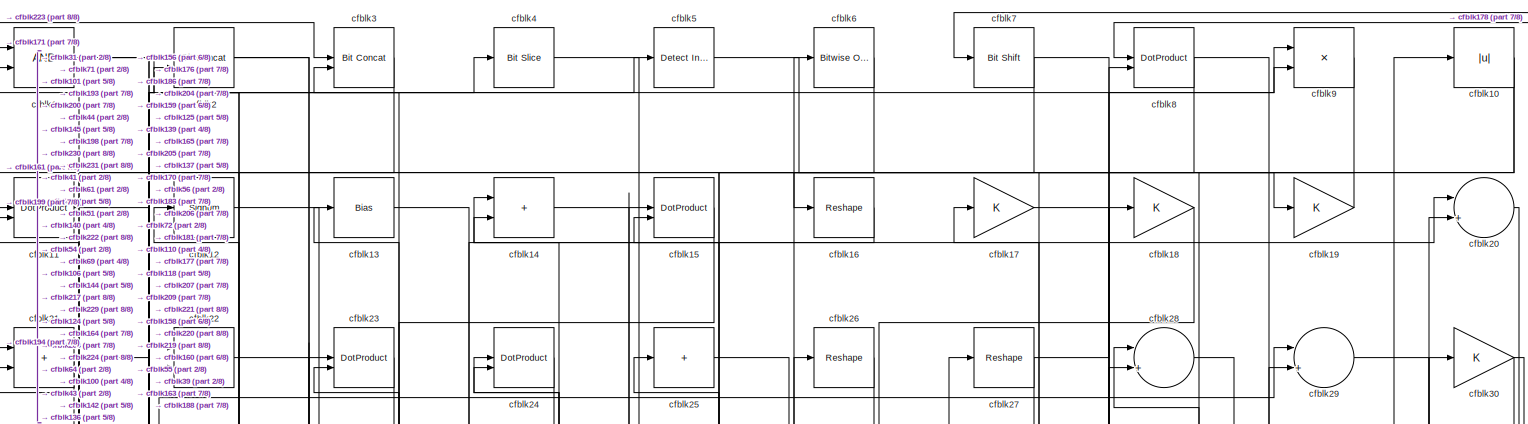
[diagram: root canvas - part 1/8, full width, top band]
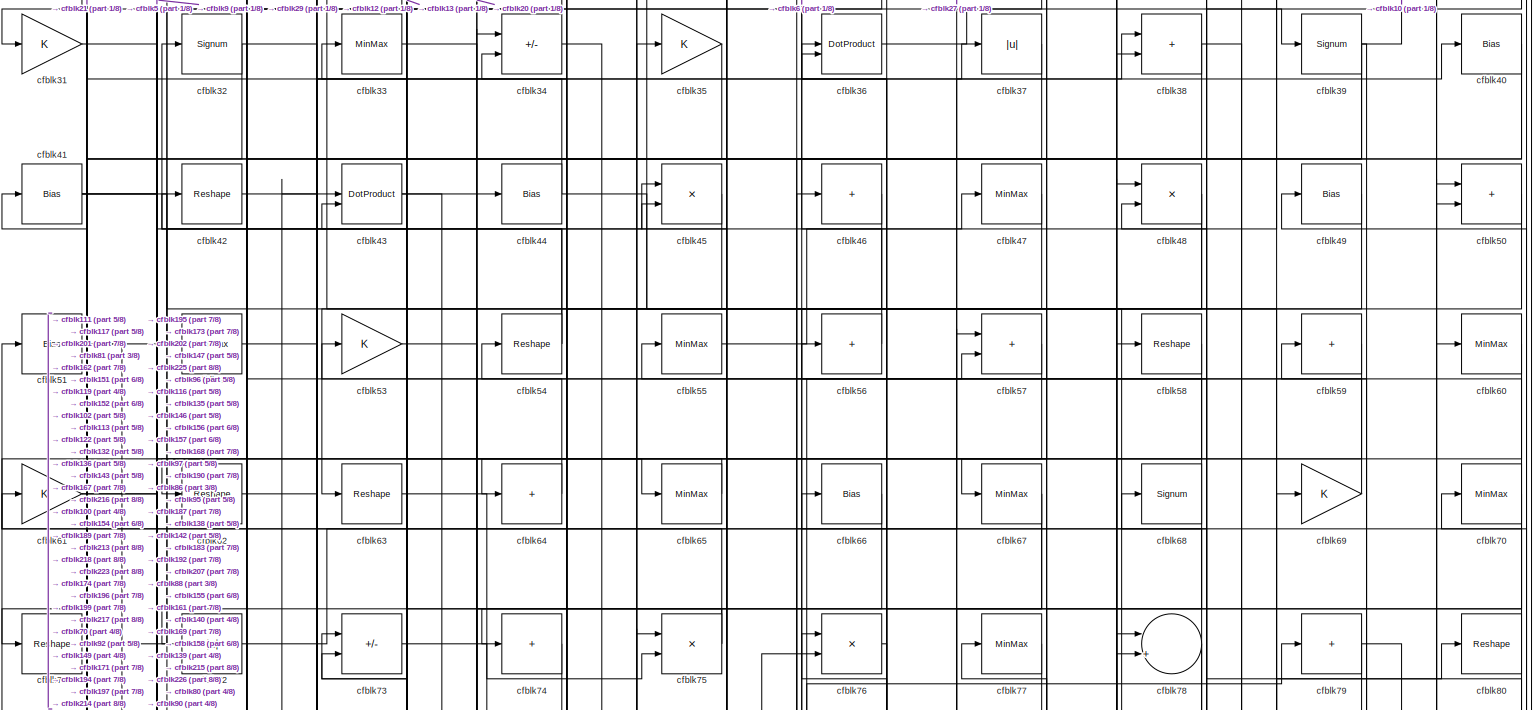
[diagram: root canvas - part 2/8, full width, top band]
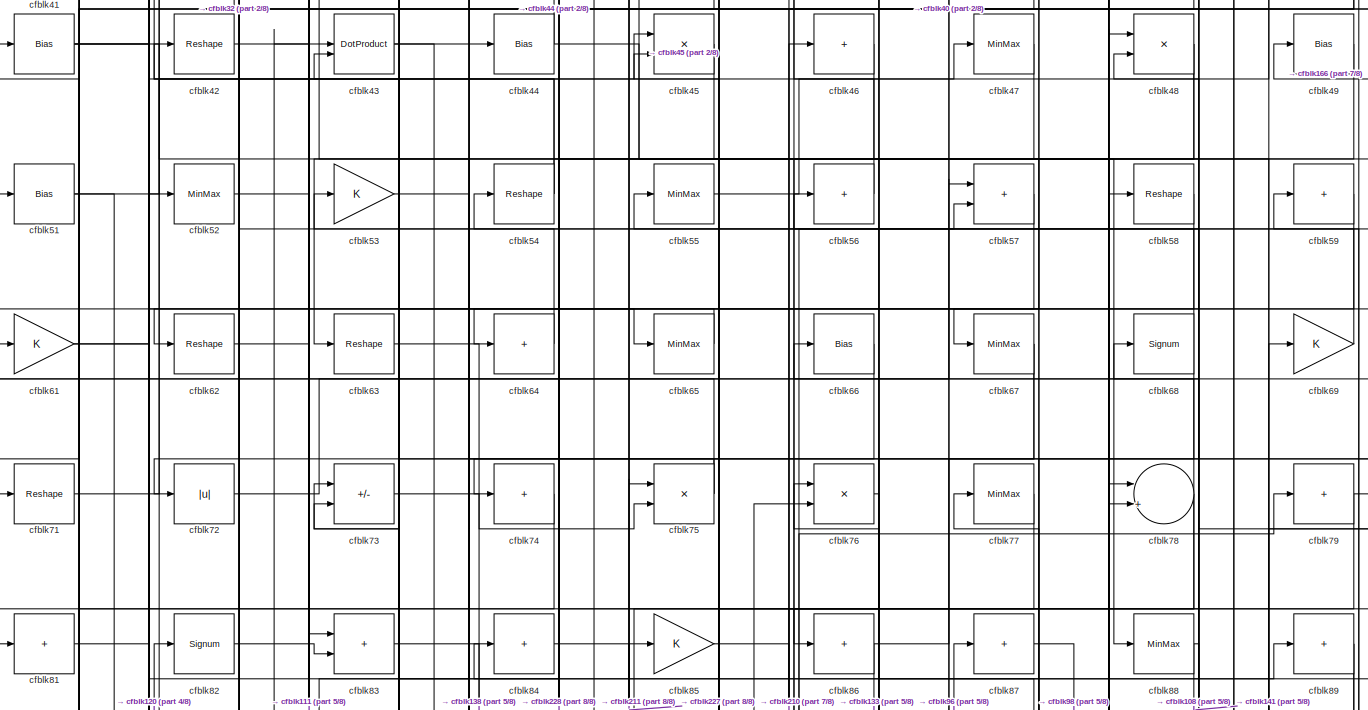
[diagram: root canvas - part 3/8, full width, top band]
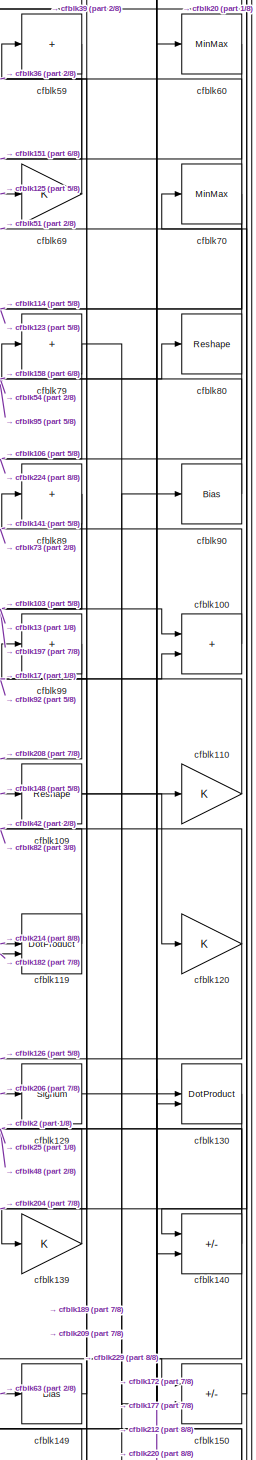
[diagram: root canvas - part 4/8, middle right region]
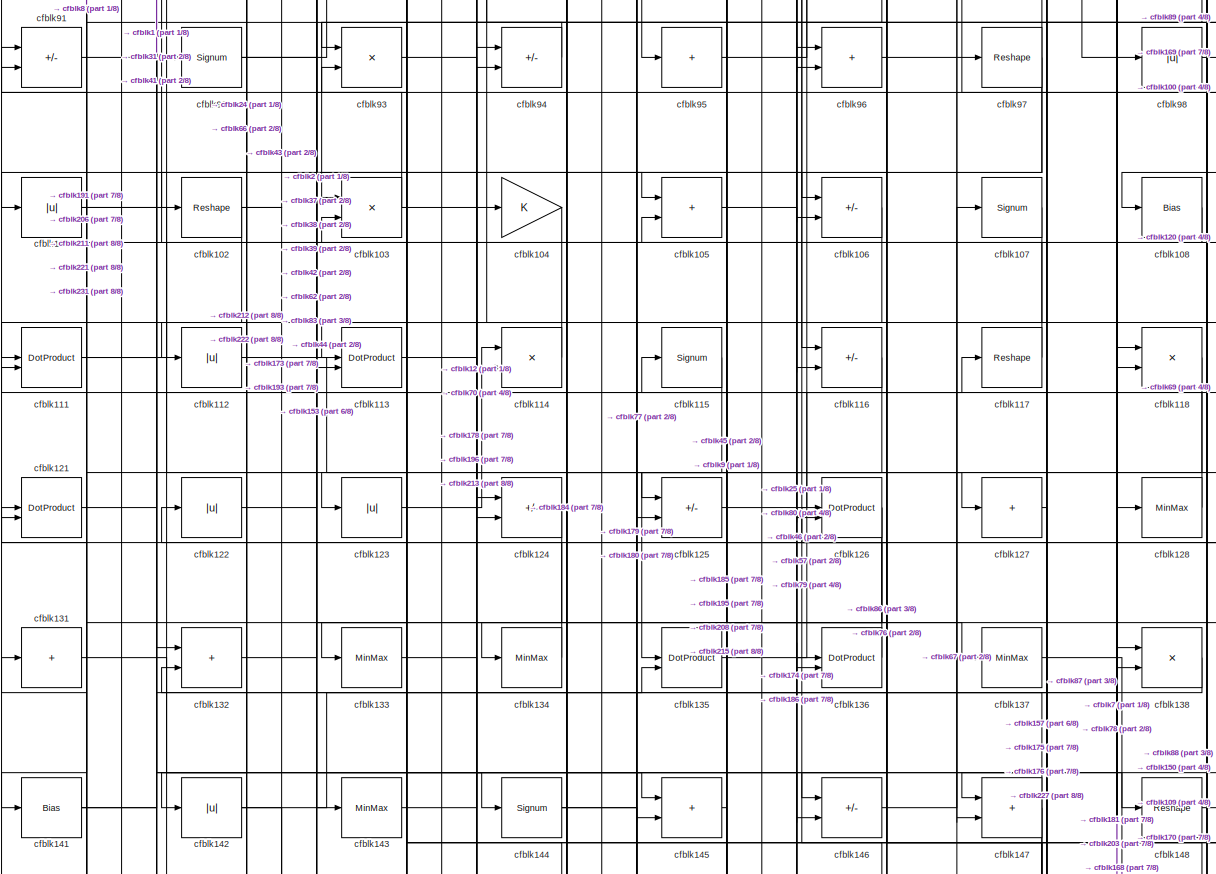
[diagram: root canvas - part 5/8, full width, middle band]
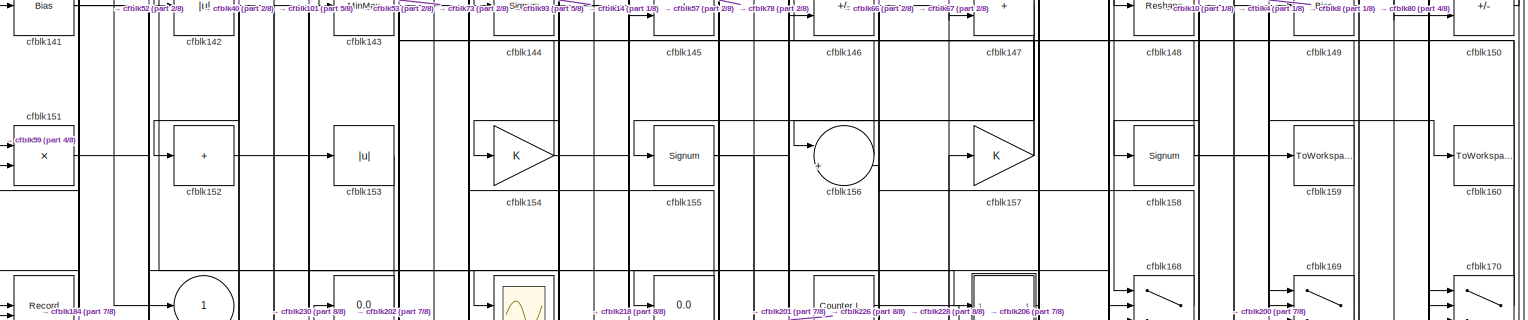
[diagram: root canvas - part 6/8, full width, middle band]
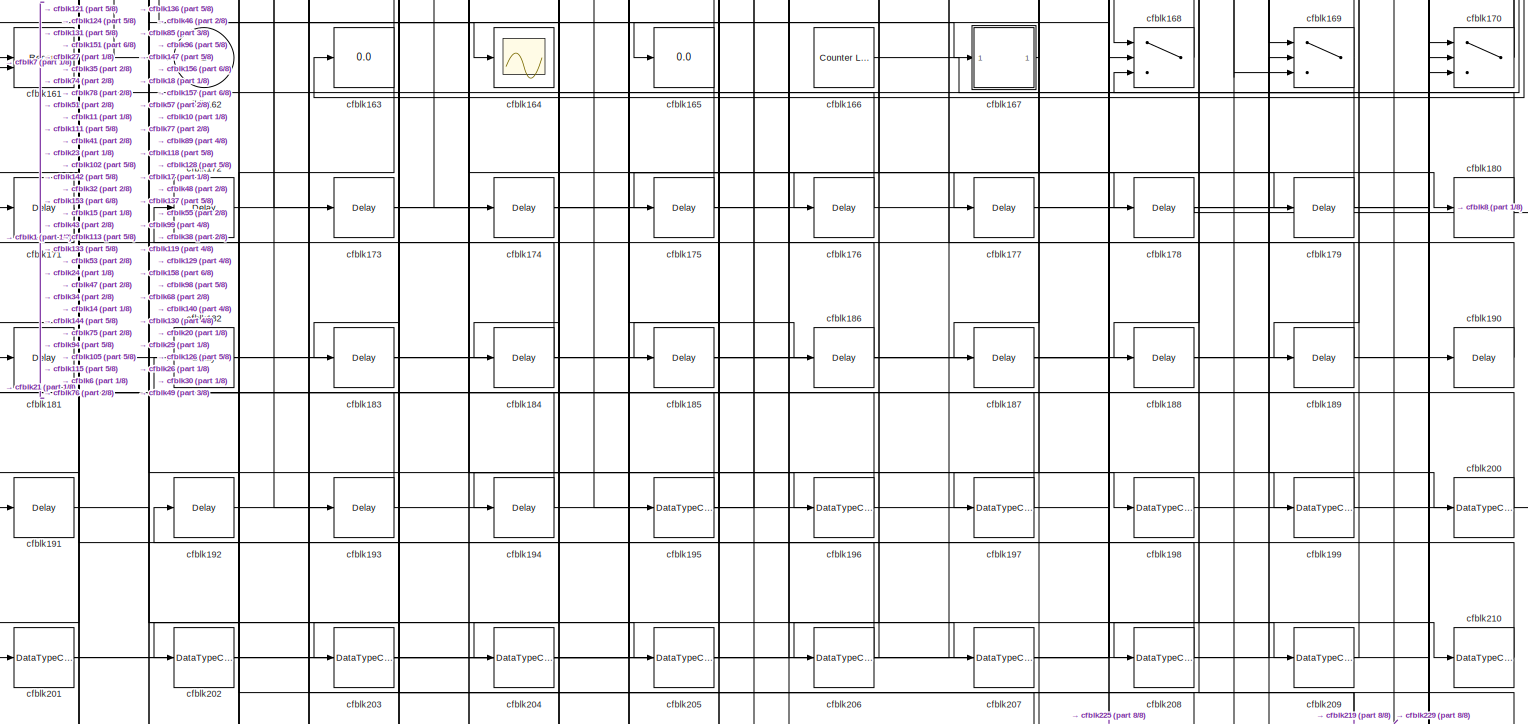
[diagram: root canvas - part 7/8, full width, bottom band]
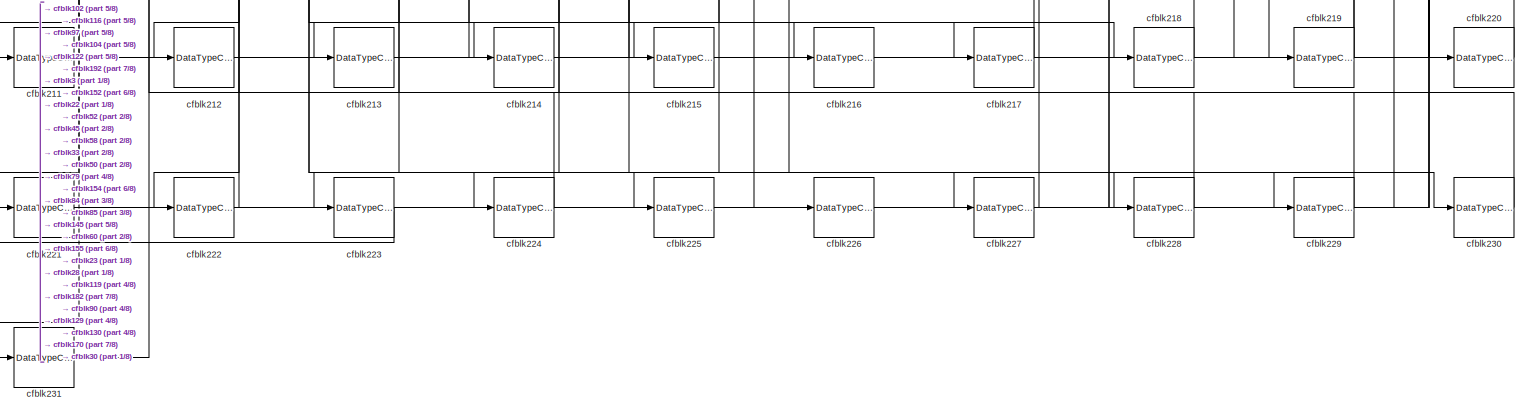
[diagram: root canvas - part 8/8, full width, bottom band]
MODEL slx_ee4e695bf727
KIND model
CONFIG AbsTol = auto
CONFIG EnableMultiTasking = off
CONFIG FixedStep = auto
CONFIG MaxStep = auto
CONFIG MinStep = auto
CONFIG RelTol = 1e-3
CONFIG SampleTimeConstraint = Unconstrained
CONFIG SolverName = VariableStepAuto
CONFIG StartTime = 0.0
CONFIG StopTime = 10.0
BLOCK [Logic] cfblk1
  AllPortsSameDT = off
  OutDataTypeStr = boolean
BLOCK [Abs] cfblk10
  SaturateOnIntegerOverflow = off
BLOCK [Sum] cfblk100
  IconShape = rectangular
BLOCK [Abs] cfblk101
  SaturateOnIntegerOverflow = off
BLOCK [Reshape] cfblk102
BLOCK [Product] cfblk103
  Inputs = */
  RndMeth = Zero
  SaturateOnIntegerOverflow = on
BLOCK [Gain] cfblk104
BLOCK [Sum] cfblk105
  IconShape = rectangular
BLOCK [Sum] cfblk106
  IconShape = rectangular
  Inputs = +-
BLOCK [Signum] cfblk107
BLOCK [Bias] cfblk108
  Bias = 0.0
  SaturateOnIntegerOverflow = off
BLOCK [Reshape] cfblk109
BLOCK [DotProduct] cfblk11
  OutDataTypeStr = Inherit: Inherit via internal rule
BLOCK [Gain] cfblk110
BLOCK [DotProduct] cfblk111
  OutDataTypeStr = Inherit: Inherit via internal rule
BLOCK [Abs] cfblk112
  SaturateOnIntegerOverflow = off
BLOCK [DotProduct] cfblk113
  OutDataTypeStr = Inherit: Inherit via internal rule
BLOCK [Product] cfblk114
  Inputs = */
  RndMeth = Zero
  SaturateOnIntegerOverflow = on
BLOCK [Signum] cfblk115
BLOCK [Sum] cfblk116
  IconShape = rectangular
  Inputs = +-
BLOCK [Reshape] cfblk117
BLOCK [Product] cfblk118
  Inputs = */
  RndMeth = Zero
  SaturateOnIntegerOverflow = on
BLOCK [DotProduct] cfblk119
  OutDataTypeStr = Inherit: Inherit via internal rule
BLOCK [Signum] cfblk12
BLOCK [Gain] cfblk120
BLOCK [DotProduct] cfblk121
  OutDataTypeStr = Inherit: Inherit via internal rule
BLOCK [Abs] cfblk122
  SaturateOnIntegerOverflow = off
BLOCK [Abs] cfblk123
  SaturateOnIntegerOverflow = off
BLOCK [Sum] cfblk124
  IconShape = rectangular
  Inputs = +-
BLOCK [Sum] cfblk125
  IconShape = rectangular
  Inputs = +-
BLOCK [DotProduct] cfblk126
  OutDataTypeStr = Inherit: Inherit via internal rule
BLOCK [Sum] cfblk127
  IconShape = rectangular
  Inputs = +
BLOCK [MinMax] cfblk128
BLOCK [Signum] cfblk129
BLOCK [Bias] cfblk13
  Bias = 0.0
  SaturateOnIntegerOverflow = off
BLOCK [DotProduct] cfblk130
  OutDataTypeStr = Inherit: Inherit via internal rule
BLOCK [Sum] cfblk131
  IconShape = rectangular
  Inputs = +
BLOCK [Sum] cfblk132
  IconShape = rectangular
BLOCK [MinMax] cfblk133
BLOCK [MinMax] cfblk134
BLOCK [DotProduct] cfblk135
  OutDataTypeStr = Inherit: Inherit via internal rule
BLOCK [DotProduct] cfblk136
  OutDataTypeStr = Inherit: Inherit via internal rule
BLOCK [MinMax] cfblk137
BLOCK [Product] cfblk138
  Inputs = */
  RndMeth = Zero
  SaturateOnIntegerOverflow = on
BLOCK [Gain] cfblk139
BLOCK [Sum] cfblk14
  IconShape = rectangular
BLOCK [Sum] cfblk140
  IconShape = rectangular
  Inputs = +-
BLOCK [Bias] cfblk141
  Bias = 0.0
  SaturateOnIntegerOverflow = off
BLOCK [Abs] cfblk142
  SaturateOnIntegerOverflow = off
BLOCK [MinMax] cfblk143
BLOCK [Signum] cfblk144
BLOCK [Sum] cfblk145
  IconShape = rectangular
BLOCK [Sum] cfblk146
  IconShape = rectangular
  Inputs = +-
BLOCK [Sum] cfblk147
  IconShape = rectangular
BLOCK [Reshape] cfblk148
BLOCK [Bias] cfblk149
  Bias = 0.0
  SaturateOnIntegerOverflow = off
BLOCK [DotProduct] cfblk15
  OutDataTypeStr = Inherit: Inherit via internal rule
BLOCK [Sum] cfblk150
  IconShape = rectangular
  Inputs = +-
BLOCK [Product] cfblk151
  Inputs = */
  RndMeth = Zero
  SaturateOnIntegerOverflow = on
BLOCK [Sum] cfblk152
  IconShape = rectangular
  Inputs = +
BLOCK [Abs] cfblk153
  SaturateOnIntegerOverflow = off
BLOCK [Gain] cfblk154
BLOCK [Signum] cfblk155
BLOCK [Sum] cfblk156
  Inputs = |++
BLOCK [Gain] cfblk157
BLOCK [Signum] cfblk158
BLOCK [ToWorkspace] cfblk159
  MaxDataPoints = inf
  SampleTime = -1
  SaveFormat = Timeseries
  VariableName = simout
BLOCK [Reshape] cfblk16
BLOCK [ToWorkspace] cfblk160
  MaxDataPoints = inf
  SampleTime = -1
  SaveFormat = Timeseries
  VariableName = simout
BLOCK [Record] cfblk161
  CompatibilityTag = XY
  FileSettingsInternal = {"entries":[{"content":{"excelSettings":{"content":{},"type":"Streamout.ExcelSettings"}},"type":"Streamout.FileSettingStorage","uuid":""}],"packageUris":["http:\/\/schema.mathworks.com\/mf0\/streamout_blocks\/R2020a"],"version":"1.0"}
  Layout = [1 1]
  SignalsInternal = {"entries":[{"content":{"signals":[{"content":{"blockPath":[],"dimensions":[1],"domain":"","lineColor":"#a2142f","plots":[1],"port":1,"signalID":1637,"signalName":"XY Graph:1"},"type":"RecordBlkView.Signal","uuid":""},{"content":{"blockPath":[],"dimensions":[1],"domain":"","lineColor":"#139fff","plots":[1],"port":2,"signalID":1640,"signalName":"XY Graph:2"},"type":"RecordBlkView.Signal","uuid":""}...<+146ch>
  VisualizationBindings = {"xyplotplugin":{"info":[{"series":[{"bindingParametersList":[{"parameter":"X-Axis","signalID":1637,"signalName":"XY Graph:1"},{"parameter":"Y-Axis","signalID":1640,"signalName":"XY Graph:2"}],"seriesID":50005}],"subplotID":1}]}}
  st = -1
BLOCK [Outport] cfblk162
  VectorParamsAs1DForOutWhenUnconnected = off
BLOCK [Display] cfblk163
  Decimation = 1
BLOCK [Scope] cfblk164
  Floating = off
  NumInputPorts = 1
  ScopeSpecificationString = Simulink.scopes.TimeScopeBlockCfg('CurrentConfiguration', extmgr.ConfigurationSet(extmgr.Configuration('Core','General UI',true),extmgr.Configuration('Core','Source UI',true),extmgr.Configuration('Sources','WiredSimulink',true,'DataLoggingVariableName','ScopeData2','DataLoggingSaveFormat','Array','DataLoggingLimitDataPoints',true,'DataLoggingDecimation','1'),extmgr.Configuration('Visuals','Time Do...<+868ch>
BLOCK [Display] cfblk165
  Decimation = 1
BLOCK [Reference] cfblk166  REF=hdlsllib/Sources/Counter
Limited
  SourceBlock = hdlsllib/Sources/Counter\nLimited
  SourceType = Counter Limited
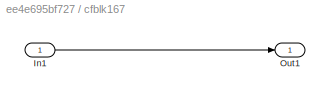
BLOCK [SubSystem] cfblk167
  LibrarySourceBlock = hdlsllib/Ports &\nSubsystems/Subsystem
BLOCK [Inport] cfblk167/In1
BLOCK [Outport] cfblk167/Out1
BLOCK [Switch] cfblk168
  InputSameDT = off
  SaturateOnIntegerOverflow = off
BLOCK [Switch] cfblk169
  InputSameDT = off
  SaturateOnIntegerOverflow = off
BLOCK [Gain] cfblk17
BLOCK [Switch] cfblk170
  InputSameDT = off
  SaturateOnIntegerOverflow = off
BLOCK [Delay] cfblk171
  InputPortMap = u0
  SampleTime = 1
BLOCK [Delay] cfblk172
  InputPortMap = u0
  SampleTime = 1
BLOCK [Delay] cfblk173
  InputPortMap = u0
  SampleTime = 1
BLOCK [Delay] cfblk174
  InputPortMap = u0
  SampleTime = 1
BLOCK [Delay] cfblk175
  InputPortMap = u0
  SampleTime = 1
BLOCK [Delay] cfblk176
  InputPortMap = u0
  SampleTime = 1
BLOCK [Delay] cfblk177
  InputPortMap = u0
  SampleTime = 1
BLOCK [Delay] cfblk178
  InputPortMap = u0
  SampleTime = 1
BLOCK [Delay] cfblk179
  InputPortMap = u0
  SampleTime = 1
BLOCK [Gain] cfblk18
BLOCK [Delay] cfblk180
  InputPortMap = u0
  SampleTime = 1
BLOCK [Delay] cfblk181
  InputPortMap = u0
  SampleTime = 1
BLOCK [Delay] cfblk182
  InputPortMap = u0
  SampleTime = 1
BLOCK [Delay] cfblk183
  InputPortMap = u0
  SampleTime = 1
BLOCK [Delay] cfblk184
  InputPortMap = u0
  SampleTime = 1
BLOCK [Delay] cfblk185
  InputPortMap = u0
  SampleTime = 1
BLOCK [Delay] cfblk186
  InputPortMap = u0
  SampleTime = 1
BLOCK [Delay] cfblk187
  InputPortMap = u0
  SampleTime = 1
BLOCK [Delay] cfblk188
  InputPortMap = u0
  SampleTime = 1
BLOCK [Delay] cfblk189
  InputPortMap = u0
  SampleTime = 1
BLOCK [Gain] cfblk19
BLOCK [Delay] cfblk190
  InputPortMap = u0
  SampleTime = 1
BLOCK [Delay] cfblk191
  InputPortMap = u0
  SampleTime = 1
BLOCK [Delay] cfblk192
  InputPortMap = u0
  SampleTime = 1
BLOCK [Delay] cfblk193
  InputPortMap = u0
  SampleTime = 1
BLOCK [Delay] cfblk194
  InputPortMap = u0
  SampleTime = 1
BLOCK [DataTypeConversion] cfblk195
  RndMeth = Floor
  SaturateOnIntegerOverflow = off
BLOCK [DataTypeConversion] cfblk196
  OutDataTypeStr = uint8
  RndMeth = Floor
  SaturateOnIntegerOverflow = off
BLOCK [DataTypeConversion] cfblk197
  OutDataTypeStr = uint8
  RndMeth = Floor
  SaturateOnIntegerOverflow = off
BLOCK [DataTypeConversion] cfblk198
  OutDataTypeStr = uint8
  RndMeth = Floor
  SaturateOnIntegerOverflow = off
BLOCK [DataTypeConversion] cfblk199
  OutDataTypeStr = uint8
  RndMeth = Floor
  SaturateOnIntegerOverflow = off
BLOCK [Reference] cfblk2  REF=hdlsllib/Logic and Bit
Operations/Bit Concat
  SourceBlock = hdlsllib/Logic and Bit\nOperations/Bit Concat
  SourceType = Bit Concat
BLOCK [Sum] cfblk20
  Inputs = |++
BLOCK [DataTypeConversion] cfblk200
  OutDataTypeStr = uint8
  RndMeth = Floor
  SaturateOnIntegerOverflow = off
BLOCK [DataTypeConversion] cfblk201
  RndMeth = Floor
  SaturateOnIntegerOverflow = off
BLOCK [DataTypeConversion] cfblk202
  OutDataTypeStr = uint8
  RndMeth = Floor
  SaturateOnIntegerOverflow = off
BLOCK [DataTypeConversion] cfblk203
  RndMeth = Floor
  SaturateOnIntegerOverflow = off
BLOCK [DataTypeConversion] cfblk204
  OutDataTypeStr = uint8
  RndMeth = Floor
  SaturateOnIntegerOverflow = off
BLOCK [DataTypeConversion] cfblk205
  OutDataTypeStr = uint8
  RndMeth = Floor
  SaturateOnIntegerOverflow = off
BLOCK [DataTypeConversion] cfblk206
  RndMeth = Floor
  SaturateOnIntegerOverflow = off
BLOCK [DataTypeConversion] cfblk207
  OutDataTypeStr = uint8
  RndMeth = Floor
  SaturateOnIntegerOverflow = off
BLOCK [DataTypeConversion] cfblk208
  RndMeth = Floor
  SaturateOnIntegerOverflow = off
BLOCK [DataTypeConversion] cfblk209
  OutDataTypeStr = uint8
  RndMeth = Floor
  SaturateOnIntegerOverflow = off
BLOCK [Sum] cfblk21
  IconShape = rectangular
BLOCK [DataTypeConversion] cfblk210
  OutDataTypeStr = uint8
  RndMeth = Floor
  SaturateOnIntegerOverflow = off
BLOCK [DataTypeConversion] cfblk211
  OutDataTypeStr = uint8
  RndMeth = Floor
  SaturateOnIntegerOverflow = off
BLOCK [DataTypeConversion] cfblk212
  OutDataTypeStr = uint8
  RndMeth = Floor
  SaturateOnIntegerOverflow = off
BLOCK [DataTypeConversion] cfblk213
  OutDataTypeStr = uint8
  RndMeth = Floor
  SaturateOnIntegerOverflow = off
BLOCK [DataTypeConversion] cfblk214
  OutDataTypeStr = uint8
  RndMeth = Floor
  SaturateOnIntegerOverflow = off
BLOCK [DataTypeConversion] cfblk215
  OutDataTypeStr = uint8
  RndMeth = Floor
  SaturateOnIntegerOverflow = off
BLOCK [DataTypeConversion] cfblk216
  OutDataTypeStr = uint8
  RndMeth = Floor
  SaturateOnIntegerOverflow = off
BLOCK [DataTypeConversion] cfblk217
  OutDataTypeStr = uint8
  RndMeth = Floor
  SaturateOnIntegerOverflow = off
BLOCK [DataTypeConversion] cfblk218
  OutDataTypeStr = uint8
  RndMeth = Floor
  SaturateOnIntegerOverflow = off
BLOCK [DataTypeConversion] cfblk219
  RndMeth = Floor
  SaturateOnIntegerOverflow = off
BLOCK [Sum] cfblk22
  IconShape = rectangular
BLOCK [DataTypeConversion] cfblk220
  OutDataTypeStr = uint8
  RndMeth = Floor
  SaturateOnIntegerOverflow = off
BLOCK [DataTypeConversion] cfblk221
  OutDataTypeStr = uint8
  RndMeth = Floor
  SaturateOnIntegerOverflow = off
BLOCK [DataTypeConversion] cfblk222
  RndMeth = Floor
  SaturateOnIntegerOverflow = off
BLOCK [DataTypeConversion] cfblk223
  OutDataTypeStr = uint8
  RndMeth = Floor
  SaturateOnIntegerOverflow = off
BLOCK [DataTypeConversion] cfblk224
  OutDataTypeStr = uint8
  RndMeth = Floor
  SaturateOnIntegerOverflow = off
BLOCK [DataTypeConversion] cfblk225
  RndMeth = Floor
  SaturateOnIntegerOverflow = off
BLOCK [DataTypeConversion] cfblk226
  OutDataTypeStr = uint8
  RndMeth = Floor
  SaturateOnIntegerOverflow = off
BLOCK [DataTypeConversion] cfblk227
  OutDataTypeStr = uint8
  RndMeth = Floor
  SaturateOnIntegerOverflow = off
BLOCK [DataTypeConversion] cfblk228
  OutDataTypeStr = uint8
  RndMeth = Floor
  SaturateOnIntegerOverflow = off
BLOCK [DataTypeConversion] cfblk229
  RndMeth = Floor
  SaturateOnIntegerOverflow = off
BLOCK [DotProduct] cfblk23
  OutDataTypeStr = Inherit: Inherit via internal rule
BLOCK [DataTypeConversion] cfblk230
  OutDataTypeStr = uint8
  RndMeth = Floor
  SaturateOnIntegerOverflow = off
BLOCK [DataTypeConversion] cfblk231
  OutDataTypeStr = uint8
  RndMeth = Floor
  SaturateOnIntegerOverflow = off
BLOCK [DotProduct] cfblk24
  OutDataTypeStr = Inherit: Inherit via internal rule
BLOCK [Sum] cfblk25
  IconShape = rectangular
  Inputs = +
BLOCK [Reshape] cfblk26
BLOCK [Reshape] cfblk27
BLOCK [Sum] cfblk28
  Inputs = |++
BLOCK [Sum] cfblk29
  Inputs = |++
BLOCK [Reference] cfblk3  REF=hdlsllib/Logic and Bit
Operations/Bit Concat
  SourceBlock = hdlsllib/Logic and Bit\nOperations/Bit Concat
  SourceType = Bit Concat
BLOCK [Gain] cfblk30
BLOCK [Gain] cfblk31
BLOCK [Signum] cfblk32
BLOCK [MinMax] cfblk33
BLOCK [Sum] cfblk34
  IconShape = rectangular
  Inputs = +-
BLOCK [Gain] cfblk35
BLOCK [DotProduct] cfblk36
  OutDataTypeStr = Inherit: Inherit via internal rule
BLOCK [Abs] cfblk37
  SaturateOnIntegerOverflow = off
BLOCK [Sum] cfblk38
  IconShape = rectangular
BLOCK [Signum] cfblk39
BLOCK [Reference] cfblk4  REF=hdlsllib/Logic and Bit
Operations/Bit Slice
  SourceBlock = hdlsllib/Logic and Bit\nOperations/Bit Slice
  SourceType = Bit Slice
BLOCK [Bias] cfblk40
  Bias = 0.0
  SaturateOnIntegerOverflow = off
BLOCK [Bias] cfblk41
  Bias = 0.0
  SaturateOnIntegerOverflow = off
BLOCK [Reshape] cfblk42
BLOCK [DotProduct] cfblk43
  OutDataTypeStr = Inherit: Inherit via internal rule
BLOCK [Bias] cfblk44
  Bias = 0.0
  SaturateOnIntegerOverflow = off
BLOCK [Product] cfblk45
  Inputs = */
  RndMeth = Zero
  SaturateOnIntegerOverflow = on
BLOCK [Sum] cfblk46
  IconShape = rectangular
  Inputs = +
BLOCK [MinMax] cfblk47
BLOCK [Product] cfblk48
  Inputs = */
  RndMeth = Zero
  SaturateOnIntegerOverflow = on
BLOCK [Bias] cfblk49
  Bias = 0.0
  SaturateOnIntegerOverflow = off
BLOCK [Reference] cfblk5  REF=simulink/Logic and Bit
Operations/Detect
Increase
  LibrarySourceBlock = hdlsllib/Logic and Bit\nOperations/Detect\nIncrease
  SourceBlock = simulink/Logic and Bit\nOperations/Detect\nIncrease
  SourceType = Detect Increase
BLOCK [Sum] cfblk50
  IconShape = rectangular
BLOCK [Bias] cfblk51
  Bias = 0.0
  SaturateOnIntegerOverflow = off
BLOCK [MinMax] cfblk52
BLOCK [Gain] cfblk53
BLOCK [Reshape] cfblk54
BLOCK [MinMax] cfblk55
BLOCK [Sum] cfblk56
  IconShape = rectangular
  Inputs = +
BLOCK [Sum] cfblk57
  IconShape = rectangular
BLOCK [Reshape] cfblk58
BLOCK [Sum] cfblk59
  IconShape = rectangular
  Inputs = +
BLOCK [Reference] cfblk6  REF=simulink/Logic and Bit
Operations/Bitwise
Operator
  LibrarySourceBlock = hdlsllib/Logic and Bit\nOperations/Bitwise\nOperator
  SourceBlock = simulink/Logic and Bit\nOperations/Bitwise\nOperator
  SourceType = Bitwise Operator
BLOCK [MinMax] cfblk60
BLOCK [Gain] cfblk61
BLOCK [Reshape] cfblk62
BLOCK [Reshape] cfblk63
BLOCK [Sum] cfblk64
  IconShape = rectangular
  Inputs = +
BLOCK [MinMax] cfblk65
BLOCK [Bias] cfblk66
  Bias = 0.0
  SaturateOnIntegerOverflow = off
BLOCK [MinMax] cfblk67
BLOCK [Signum] cfblk68
BLOCK [Gain] cfblk69
BLOCK [Reference] cfblk7  REF=hdlsllib/Logic and Bit
Operations/Bit Shift
  SourceBlock = hdlsllib/Logic and Bit\nOperations/Bit Shift
  SourceType = Bit Shift
BLOCK [MinMax] cfblk70
BLOCK [Reshape] cfblk71
BLOCK [Abs] cfblk72
  SaturateOnIntegerOverflow = off
BLOCK [Sum] cfblk73
  IconShape = rectangular
  Inputs = +-
BLOCK [Sum] cfblk74
  IconShape = rectangular
  Inputs = +
BLOCK [Product] cfblk75
  Inputs = */
  RndMeth = Zero
  SaturateOnIntegerOverflow = on
BLOCK [Product] cfblk76
  Inputs = */
  RndMeth = Zero
  SaturateOnIntegerOverflow = on
BLOCK [MinMax] cfblk77
BLOCK [Sum] cfblk78
  Inputs = |++
BLOCK [Sum] cfblk79
  IconShape = rectangular
  Inputs = +
BLOCK [DotProduct] cfblk8
  OutDataTypeStr = Inherit: Inherit via internal rule
BLOCK [Reshape] cfblk80
BLOCK [Sum] cfblk81
  IconShape = rectangular
  Inputs = +
BLOCK [Signum] cfblk82
BLOCK [Sum] cfblk83
  IconShape = rectangular
BLOCK [Sum] cfblk84
  IconShape = rectangular
  Inputs = +
BLOCK [Gain] cfblk85
BLOCK [Sum] cfblk86
  IconShape = rectangular
  Inputs = +
BLOCK [Sum] cfblk87
  IconShape = rectangular
  Inputs = +
BLOCK [MinMax] cfblk88
BLOCK [Sum] cfblk89
  IconShape = rectangular
  Inputs = +
BLOCK [Product] cfblk9
  Inputs = */
  RndMeth = Zero
  SaturateOnIntegerOverflow = on
BLOCK [Bias] cfblk90
  Bias = 0.0
  SaturateOnIntegerOverflow = off
BLOCK [Sum] cfblk91
  IconShape = rectangular
  Inputs = +-
BLOCK [Signum] cfblk92
BLOCK [Product] cfblk93
  Inputs = */
  RndMeth = Zero
  SaturateOnIntegerOverflow = on
BLOCK [Sum] cfblk94
  IconShape = rectangular
  Inputs = +-
BLOCK [Sum] cfblk95
  IconShape = rectangular
  Inputs = +
BLOCK [Sum] cfblk96
  IconShape = rectangular
BLOCK [Reshape] cfblk97
BLOCK [Abs] cfblk98
  SaturateOnIntegerOverflow = off
BLOCK [Sum] cfblk99
  IconShape = rectangular
  Inputs = +
LINE cfblk100:1 -> cfblk73:1
NET cfblk101:1 -> cfblk146:2, cfblk153:1
NET cfblk102:1 -> cfblk173:1, cfblk231:1, cfblk43:1
NET cfblk103:1 -> cfblk150:1, cfblk91:1
LINE cfblk104:1 -> cfblk212:1
LINE cfblk105:1 -> cfblk116:2
LINE cfblk106:1 -> cfblk113:1
LINE cfblk107:1 -> cfblk125:2
LINE cfblk108:1 -> cfblk103:2
NET cfblk109:1 -> cfblk120:1, cfblk150:2
NET cfblk10:1 -> cfblk158:1, cfblk177:1
LINE cfblk110:1 -> cfblk17:1
NET cfblk111:1 -> cfblk168:2, cfblk83:1
LINE cfblk112:1 -> cfblk124:2
LINE cfblk113:1 -> cfblk178:1
LINE cfblk114:1 -> cfblk112:1
LINE cfblk115:1 -> cfblk135:1
LINE cfblk116:1 -> cfblk211:1
LINE cfblk117:1 -> cfblk41:1
LINE cfblk118:1 -> cfblk134:1
LINE cfblk119:1 -> cfblk42:1
LINE cfblk11:1 -> cfblk198:1
NET cfblk120:1 -> cfblk126:2, cfblk82:1
LINE cfblk121:1 -> cfblk117:1
LINE cfblk122:1 -> cfblk38:1
LINE cfblk123:1 -> cfblk114:1
LINE cfblk124:1 -> cfblk191:1
LINE cfblk125:1 -> cfblk69:1
NET cfblk126:1 -> cfblk184:1, cfblk185:1
LINE cfblk127:1 -> cfblk147:1
LINE cfblk128:1 -> cfblk91:2
LINE cfblk129:1 -> cfblk220:1
LINE cfblk12:1 -> cfblk124:1
LINE cfblk130:1 -> cfblk204:1
LINE cfblk131:1 -> cfblk148:1
LINE cfblk132:1 -> cfblk37:1
LINE cfblk133:1 -> cfblk196:1
LINE cfblk134:1 -> cfblk121:1
LINE cfblk135:1 -> cfblk57:2
LINE cfblk136:1 -> cfblk24:1
LINE cfblk137:1 -> cfblk168:1
LINE cfblk138:1 -> cfblk132:2
LINE cfblk139:1 -> cfblk25:1
LINE cfblk13:1 -> cfblk100:1
NET cfblk140:1 -> cfblk189:1, cfblk2:2, cfblk48:2
NET cfblk141:1 -> cfblk135:2, cfblk89:1
NET cfblk142:1 -> cfblk193:1, cfblk78:1
LINE cfblk143:1 -> cfblk94:2
NET cfblk144:1 -> cfblk179:1, cfblk180:1
LINE cfblk145:1 -> cfblk215:1
LINE cfblk146:1 -> cfblk107:1
NET cfblk147:1 -> cfblk175:1, cfblk176:1, cfblk45:2
LINE cfblk148:1 -> cfblk109:1
LINE cfblk149:1 -> cfblk59:1
LINE cfblk14:1 -> cfblk186:1
LINE cfblk150:1 -> cfblk70:1
LINE cfblk151:1 -> cfblk52:1
LINE cfblk152:1 -> cfblk230:1
LINE cfblk153:1 -> cfblk202:1
NET cfblk154:1 -> cfblk218:1, cfblk73:2
NET cfblk155:1 -> cfblk226:1, cfblk228:1
LINE cfblk156:1 -> cfblk14:1
NET cfblk157:1 -> cfblk66:1, cfblk93:2
NET cfblk158:1 -> cfblk200:1, cfblk53:1, cfblk80:1
LINE cfblk15:1 -> cfblk203:1
LINE cfblk166:1 -> cfblk49:1
LINE cfblk167/In1:1 -> cfblk167/Out1:1
LINE cfblk167:1 -> cfblk77:1
LINE cfblk168:1 -> cfblk55:1
NET cfblk169:1 -> cfblk168:3, cfblk68:1
LINE cfblk16:1 -> cfblk14:2
NET cfblk170:1 -> cfblk126:1, cfblk26:1
LINE cfblk171:1 -> cfblk1:1
LINE cfblk172:1 -> cfblk130:1
LINE cfblk173:1 -> cfblk75:1
LINE cfblk174:1 -> cfblk136:1
LINE cfblk175:1 -> cfblk94:1
LINE cfblk176:1 -> cfblk24:2
LINE cfblk177:1 -> cfblk140:2
LINE cfblk178:1 -> cfblk8:1
LINE cfblk179:1 -> cfblk169:2
LINE cfblk17:1 -> cfblk209:1
LINE cfblk180:1 -> cfblk121:2
LINE cfblk181:1 -> cfblk118:2
LINE cfblk182:1 -> cfblk119:2
LINE cfblk183:1 -> cfblk48:1
LINE cfblk184:1 -> cfblk151:2
LINE cfblk185:1 -> cfblk170:3
LINE cfblk186:1 -> cfblk96:1
LINE cfblk187:1 -> cfblk38:2
LINE cfblk188:1 -> cfblk20:2
LINE cfblk189:1 -> cfblk43:2
LINE cfblk18:1 -> cfblk206:1
LINE cfblk190:1 -> cfblk57:1
LINE cfblk191:1 -> cfblk205:1
LINE cfblk192:1 -> cfblk78:2
LINE cfblk193:1 -> cfblk1:2
LINE cfblk194:1 -> cfblk21:1
NET cfblk195:1 -> cfblk115:1, cfblk131:1, cfblk76:2
LINE cfblk196:1 -> cfblk34:1
LINE cfblk197:1 -> cfblk34:2
LINE cfblk198:1 -> cfblk7:1
LINE cfblk199:1 -> cfblk11:1
LINE cfblk19:1 -> cfblk16:1
NET cfblk1:1 -> cfblk145:1, cfblk92:1
LINE cfblk200:1 -> cfblk11:2
NET cfblk201:1 -> cfblk157:1, cfblk46:1
LINE cfblk202:1 -> cfblk35:1
NET cfblk203:1 -> cfblk128:1, cfblk8:2
LINE cfblk204:1 -> cfblk15:1
LINE cfblk205:1 -> cfblk15:2
NET cfblk206:1 -> cfblk111:2, cfblk129:1, cfblk156:2
LINE cfblk207:1 -> cfblk18:1
NET cfblk208:1 -> cfblk105:2, cfblk190:1
LINE cfblk209:1 -> cfblk99:1
LINE cfblk20:1 -> cfblk140:1
LINE cfblk210:1 -> cfblk172:1
LINE cfblk211:1 -> cfblk85:1
LINE cfblk212:1 -> cfblk130:2
LINE cfblk213:1 -> cfblk104:1
LINE cfblk214:1 -> cfblk119:1
LINE cfblk215:1 -> cfblk50:1
LINE cfblk216:1 -> cfblk50:2
LINE cfblk217:1 -> cfblk23:1
LINE cfblk218:1 -> cfblk33:1
NET cfblk219:1 -> cfblk182:1, cfblk23:2
NET cfblk21:1 -> cfblk31:1, cfblk4:1, cfblk71:1
LINE cfblk220:1 -> cfblk28:1
LINE cfblk221:1 -> cfblk28:2
NET cfblk222:1 -> cfblk122:1, cfblk30:1
LINE cfblk223:1 -> cfblk3:1
LINE cfblk224:1 -> cfblk3:2
NET cfblk225:1 -> cfblk170:2, cfblk58:1
LINE cfblk226:1 -> cfblk60:1
LINE cfblk227:1 -> cfblk97:1
LINE cfblk228:1 -> cfblk84:1
NET cfblk229:1 -> cfblk192:1, cfblk90:1
LINE cfblk22:1 -> cfblk229:1
LINE cfblk230:1 -> cfblk22:1
LINE cfblk231:1 -> cfblk22:2
LINE cfblk23:1 -> cfblk164:1
LINE cfblk24:1 -> cfblk142:1
LINE cfblk25:1 -> cfblk137:1
LINE cfblk26:1 -> cfblk183:1
NET cfblk27:1 -> cfblk181:1, cfblk9:1
LINE cfblk28:1 -> cfblk219:1
LINE cfblk29:1 -> cfblk170:1
NET cfblk2:1 -> cfblk106:1, cfblk144:1
NET cfblk30:1 -> cfblk163:1, cfblk188:1
LINE cfblk31:1 -> cfblk132:1
NET cfblk32:1 -> cfblk167:1, cfblk81:1
LINE cfblk33:1 -> cfblk217:1
LINE cfblk34:1 -> cfblk195:1
LINE cfblk35:1 -> cfblk201:1
LINE cfblk36:1 -> cfblk39:1
LINE cfblk37:1 -> cfblk72:1
NET cfblk38:1 -> cfblk169:3, cfblk96:2
NET cfblk39:1 -> cfblk10:1, cfblk111:1, cfblk113:2, cfblk139:1
LINE cfblk3:1 -> cfblk222:1
NET cfblk40:1 -> cfblk152:1, cfblk64:1
NET cfblk41:1 -> cfblk138:2, cfblk207:1, cfblk5:1
LINE cfblk42:1 -> cfblk143:1
NET cfblk43:1 -> cfblk174:1, cfblk20:1
NET cfblk44:1 -> cfblk21:2, cfblk88:1
LINE cfblk45:1 -> cfblk223:1
LINE cfblk46:1 -> cfblk116:1
LINE cfblk47:1 -> cfblk194:1
NET cfblk48:1 -> cfblk63:1, cfblk67:1
LINE cfblk49:1 -> cfblk86:1
LINE cfblk4:1 -> cfblk159:1
LINE cfblk50:1 -> cfblk214:1
NET cfblk51:1 -> cfblk162:1, cfblk29:1
LINE cfblk52:1 -> cfblk216:1
LINE cfblk53:1 -> cfblk199:1
NET cfblk54:1 -> cfblk12:1, cfblk32:1
LINE cfblk55:1 -> cfblk29:2
LINE cfblk56:1 -> cfblk6:1
LINE cfblk57:1 -> cfblk154:1
LINE cfblk58:1 -> cfblk213:1
LINE cfblk59:1 -> cfblk151:1
LINE cfblk5:1 -> cfblk19:1
LINE cfblk60:1 -> cfblk225:1
NET cfblk61:1 -> cfblk65:1, cfblk9:2
LINE cfblk62:1 -> cfblk136:2
LINE cfblk63:1 -> cfblk149:1
LINE cfblk64:1 -> cfblk13:1
LINE cfblk65:1 -> cfblk62:1
LINE cfblk66:1 -> cfblk102:1
NET cfblk67:1 -> cfblk147:2, cfblk156:1
NET cfblk68:1 -> cfblk187:1, cfblk36:1
LINE cfblk69:1 -> cfblk2:1
LINE cfblk6:1 -> cfblk165:1
NET cfblk70:1 -> cfblk114:2, cfblk123:1, cfblk36:2
LINE cfblk71:1 -> cfblk47:1
LINE cfblk72:1 -> cfblk27:1
LINE cfblk73:1 -> cfblk75:2
LINE cfblk74:1 -> cfblk171:1
NET cfblk75:1 -> cfblk61:1, cfblk74:1
LINE cfblk76:1 -> cfblk146:1
LINE cfblk77:1 -> cfblk95:1
NET cfblk78:1 -> cfblk155:1, cfblk161:1, cfblk56:1
NET cfblk79:1 -> cfblk110:1, cfblk224:1
NET cfblk7:1 -> cfblk118:1, cfblk161:2
NET cfblk80:1 -> cfblk106:2, cfblk51:1
LINE cfblk81:1 -> cfblk45:1
LINE cfblk82:1 -> cfblk83:2
LINE cfblk83:1 -> cfblk138:1
LINE cfblk84:1 -> cfblk227:1
LINE cfblk85:1 -> cfblk210:1
NET cfblk86:1 -> cfblk133:1, cfblk40:1
LINE cfblk87:1 -> cfblk98:1
NET cfblk88:1 -> cfblk108:1, cfblk141:1
NET cfblk89:1 -> cfblk103:1, cfblk197:1
NET cfblk8:1 -> cfblk101:1, cfblk160:1
LINE cfblk90:1 -> cfblk54:1
LINE cfblk91:1 -> cfblk105:1
NET cfblk92:1 -> cfblk100:2, cfblk44:1
LINE cfblk93:1 -> cfblk127:1
LINE cfblk94:1 -> cfblk93:1
LINE cfblk95:1 -> cfblk79:1
LINE cfblk96:1 -> cfblk87:1
NET cfblk97:1 -> cfblk145:2, cfblk221:1, cfblk76:1
LINE cfblk98:1 -> cfblk169:1
LINE cfblk99:1 -> cfblk208:1
LINE cfblk9:1 -> cfblk125:1
note: NET lines group one-source signal fan-out (src -> all destinations, sorted); 1:1 wires keep LINE
